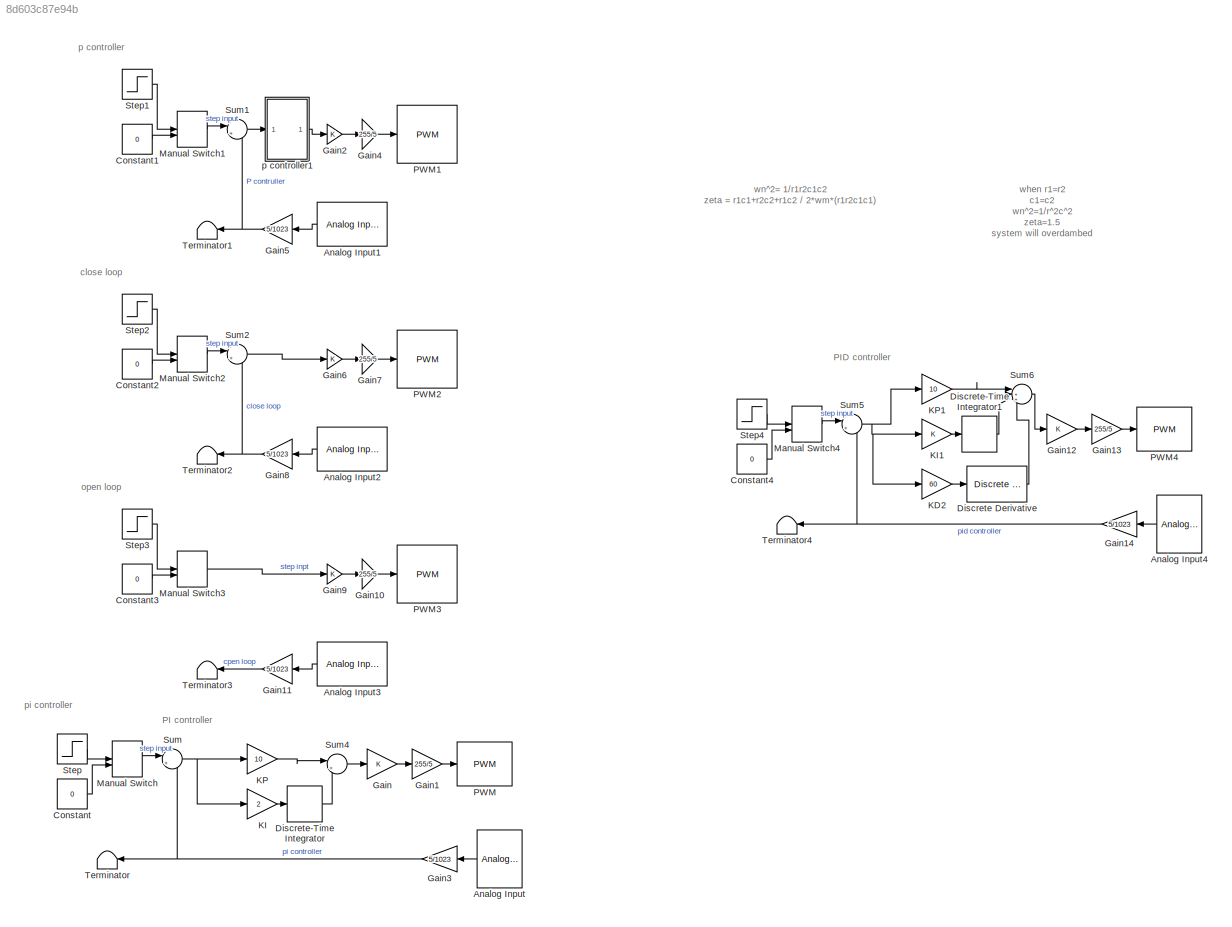
MODEL slx_8d603c87e94b
KIND model
CONFIG AbsTol = auto
CONFIG EnableMultiTasking = on
CONFIG FixedStep = 1e-3
CONFIG MaxStep = auto
CONFIG MinStep = auto
CONFIG RelTol = 1e-3
CONFIG SampleTimeConstraint = Unconstrained
CONFIG SolverName = FixedStepDiscrete
CONFIG StartTime = 0.0
CONFIG StopTime = 60.0
BLOCK [Reference] Analog Input  REF=arduinolib/Analog Input
  Commented = on
  SourceBlock = arduinolib/Analog Input
  SourceType = Arduino Analog Input
BLOCK [Reference] Analog Input1  REF=arduinolib/Analog Input
  Commented = on
  SourceBlock = arduinolib/Analog Input
  SourceType = Arduino Analog Input
BLOCK [Reference] Analog Input2  REF=arduinolib/Analog Input
  Commented = on
  SourceBlock = arduinolib/Analog Input
  SourceType = Arduino Analog Input
BLOCK [Reference] Analog Input3  REF=arduinolib/Analog Input
  Commented = on
  SourceBlock = arduinolib/Analog Input
  SourceType = Arduino Analog Input
BLOCK [Reference] Analog Input4  REF=arduinolib/Analog Input
  Commented = on
  SourceBlock = arduinolib/Analog Input
  SourceType = Arduino Analog Input
BLOCK [Constant] Constant
  Commented = on
  Value = 0
BLOCK [Constant] Constant1
  Commented = on
  Value = 0
BLOCK [Constant] Constant2
  Commented = on
  Value = 0
BLOCK [Constant] Constant3
  Commented = on
  Value = 0
BLOCK [Constant] Constant4
  Commented = on
  Value = 0
BLOCK [Reference] Discrete Derivative  REF=simulink/Discrete/Discrete Derivative
  Commented = on
  SourceBlock = simulink/Discrete/Discrete Derivative
  SourceType = Discrete Derivative
BLOCK [DiscreteIntegrator] Discrete-Time Integrator
  Commented = on
  ICPrevOutput = DiscIntNeverNeededParam
  ICPrevScaledInput = DiscIntNeverNeededParam
  InitialConditionSetting = Auto
  SampleTime = -1
BLOCK [DiscreteIntegrator] Discrete-Time Integrator1
  Commented = on
  ICPrevOutput = DiscIntNeverNeededParam
  ICPrevScaledInput = DiscIntNeverNeededParam
  InitialConditionSetting = Auto
  SampleTime = -1
BLOCK [Gain] Gain
  Commented = on
BLOCK [Gain] Gain1
  Commented = on
  Gain = 255/5
BLOCK [Gain] Gain10
  Commented = on
  Gain = 255/5
BLOCK [Gain] Gain11
  Commented = on
  Gain = 5/1023
BLOCK [Gain] Gain12
  Commented = on
BLOCK [Gain] Gain13
  Commented = on
  Gain = 255/5
BLOCK [Gain] Gain14
  Commented = on
  Gain = 5/1023
BLOCK [Gain] Gain2
  Commented = on
BLOCK [Gain] Gain3
  Commented = on
  Gain = 5/1023
BLOCK [Gain] Gain4
  Commented = on
  Gain = 255/5
BLOCK [Gain] Gain5
  Commented = on
  Gain = 5/1023
BLOCK [Gain] Gain6
  Commented = on
BLOCK [Gain] Gain7
  Commented = on
  Gain = 255/5
BLOCK [Gain] Gain8
  Commented = on
  Gain = 5/1023
BLOCK [Gain] Gain9
  Commented = on
BLOCK [Gain] KD2
  Commented = on
  Gain = 60
BLOCK [Gain] KI
  Commented = on
  Gain = 2
BLOCK [Gain] KI1
  Commented = on
BLOCK [Gain] KP
  Commented = on
  Gain = 10
BLOCK [Gain] KP1
  Commented = on
  Gain = 10
BLOCK [ManualSwitch] Manual Switch
  Commented = on
BLOCK [ManualSwitch] Manual Switch1
  Commented = on
BLOCK [ManualSwitch] Manual Switch2
  Commented = on
BLOCK [ManualSwitch] Manual Switch3
  Commented = on
BLOCK [ManualSwitch] Manual Switch4
  Commented = on
BLOCK [Reference] PWM  REF=arduinolib/PWM
  Commented = on
  SourceBlock = arduinolib/PWM
  SourceType = Arduino PWM
BLOCK [Reference] PWM1  REF=arduinolib/PWM
  Commented = on
  SourceBlock = arduinolib/PWM
  SourceType = Arduino PWM
BLOCK [Reference] PWM2  REF=arduinolib/PWM
  Commented = on
  SourceBlock = arduinolib/PWM
  SourceType = Arduino PWM
BLOCK [Reference] PWM3  REF=arduinolib/PWM
  Commented = on
  SourceBlock = arduinolib/PWM
  SourceType = Arduino PWM
BLOCK [Reference] PWM4  REF=arduinolib/PWM
  Commented = on
  SourceBlock = arduinolib/PWM
  SourceType = Arduino PWM
BLOCK [Step] Step
  Commented = on
  SampleTime = 0
BLOCK [Step] Step1
  Commented = on
  SampleTime = 0
BLOCK [Step] Step2
  Commented = on
  SampleTime = 0
BLOCK [Step] Step3
  Commented = on
  SampleTime = 0
BLOCK [Step] Step4
  Commented = on
  SampleTime = 0
BLOCK [Sum] Sum
  Commented = on
  Inputs = |+-
BLOCK [Sum] Sum1
  Commented = on
  Inputs = |+-
BLOCK [Sum] Sum2
  Commented = on
  Inputs = |+-
BLOCK [Sum] Sum4
  Commented = on
  Inputs = |++
BLOCK [Sum] Sum5
  Commented = on
  Inputs = |+-
BLOCK [Sum] Sum6
  Commented = on
  Inputs = |+++
BLOCK [Terminator] Terminator
  Commented = on
BLOCK [Terminator] Terminator1
  Commented = on
BLOCK [Terminator] Terminator2
  Commented = on
BLOCK [Terminator] Terminator3
  Commented = on
BLOCK [Terminator] Terminator4
  Commented = on
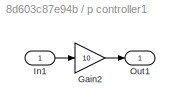
BLOCK [SubSystem] p controller1
  Commented = on
BLOCK [Gain] p controller1/Gain2
  Gain = 10
BLOCK [Inport] p controller1/In1
BLOCK [Outport] p controller1/Out1
ANNOTATION (root): when r1=r2 c1=c2 wn^2=1/r^2c^2 zeta=1.5 system will overdambed
ANNOTATION (root): wn^2= 1/r1r2c1c2 zeta = r1c1+r2c2+r1c2 / 2*wm*(r1r2c1c1)
ANNOTATION (root): PI controller
ANNOTATION (root): PID controller
ANNOTATION (root): close loop
ANNOTATION (root): open loop
ANNOTATION (root): p controller
ANNOTATION (root): pi controller
LINE Analog Input1:1 -> Gain5:1
LINE Analog Input2:1 -> Gain8:1
LINE Analog Input3:1 -> Gain11:1
LINE Analog Input4:1 -> Gain14:1
LINE Analog Input:1 -> Gain3:1
LINE Constant1:1 -> Manual Switch1:2
LINE Constant2:1 -> Manual Switch2:2
LINE Constant3:1 -> Manual Switch3:2
LINE Constant4:1 -> Manual Switch4:2
LINE Constant:1 -> Manual Switch:2
LINE Discrete Derivative:1 -> Sum6:3
LINE Discrete-Time Integrator1:1 -> Sum6:2
LINE Discrete-Time Integrator:1 -> Sum4:2
LINE Gain10:1 -> PWM3:1
LINE Gain11:1 -> Terminator3:1
LINE Gain12:1 -> Gain13:1
LINE Gain13:1 -> PWM4:1
NET Gain14:1 -> Sum5:2, Terminator4:1
LINE Gain1:1 -> PWM:1
LINE Gain2:1 -> Gain4:1
NET Gain3:1 -> Sum:2, Terminator:1
LINE Gain4:1 -> PWM1:1
NET Gain5:1 -> Sum1:2, Terminator1:1
LINE Gain6:1 -> Gain7:1
LINE Gain7:1 -> PWM2:1
NET Gain8:1 -> Sum2:2, Terminator2:1
LINE Gain9:1 -> Gain10:1
LINE Gain:1 -> Gain1:1
LINE KD2:1 -> Discrete Derivative:1
LINE KI1:1 -> Discrete-Time Integrator1:1
LINE KI:1 -> Discrete-Time Integrator:1
LINE KP1:1 -> Sum6:1
LINE KP:1 -> Sum4:1
LINE Manual Switch1:1 -> Sum1:1
LINE Manual Switch2:1 -> Sum2:1
LINE Manual Switch3:1 -> Gain9:1
LINE Manual Switch4:1 -> Sum5:1
LINE Manual Switch:1 -> Sum:1
LINE Step1:1 -> Manual Switch1:1
LINE Step2:1 -> Manual Switch2:1
LINE Step3:1 -> Manual Switch3:1
LINE Step4:1 -> Manual Switch4:1
LINE Step:1 -> Manual Switch:1
LINE Sum1:1 -> p controller1:1
LINE Sum2:1 -> Gain6:1
LINE Sum4:1 -> Gain:1
NET Sum5:1 -> KD2:1, KI1:1, KP1:1
LINE Sum6:1 -> Gain12:1
NET Sum:1 -> KI:1, KP:1
LINE p controller1/Gain2:1 -> p controller1/Out1:1
LINE p controller1/In1:1 -> p controller1/Gain2:1
LINE p controller1:1 -> Gain2:1
note: NET lines group one-source signal fan-out (src -> all destinations, sorted); 1:1 wires keep LINE
